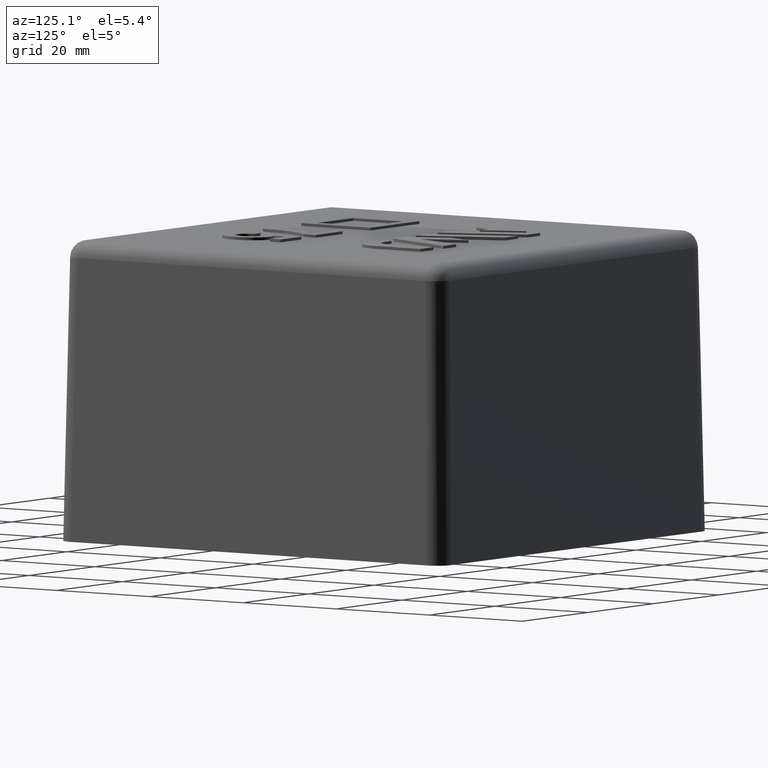
[diagram: clean part render]
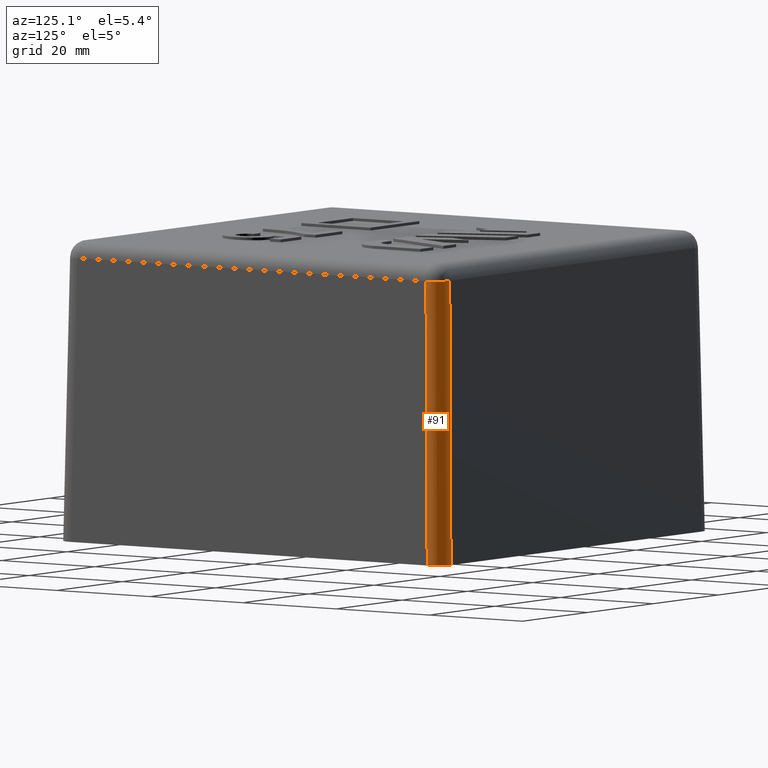
[diagram: same view with one face highlighted and labeled with its STEP entity id]
A machine part, auxiliary view. The second image highlights one B-rep face of the part: STEP entity #91.
In plain terms, the highlighted cylindrical surface (edge-blend (fillet) strip) has radius 3 mm, axis along (-0.0174, -0.0174, 0.9997).
Its self-contained STEP definition (entity closure, byte-faithful):
#91 = ADVANCED_FACE( '', ( #201 ), #202, .T. );
#201 = FACE_OUTER_BOUND( '', #384, .T. );
#202 = CYLINDRICAL_SURFACE( '', #385, 3.00000000000000 );
#384 = EDGE_LOOP( '', ( #703, #704, #705, #706 ) );
#385 = AXIS2_PLACEMENT_3D( '', #707, #708, #709 );
#703 = ORIENTED_EDGE( '', *, *, #1304, .F. );
#704 = ORIENTED_EDGE( '', *, *, #1310, .T. );
#705 = ORIENTED_EDGE( '', *, *, #1313, .F. );
#706 = ORIENTED_EDGE( '', *, *, #1314, .F. );
#707 = CARTESIAN_POINT( '', ( 38.2762190732399, 38.2762190732399, 1.33622777826016 ) );
#708 = DIRECTION( '', ( -0.0174497491606827, -0.0174497491606827, 0.999695459881888 ) );
#709 = DIRECTION( '', ( -0.999847695156391, 0.000000000000000, -0.0174524064372835 ) );
#1304 = EDGE_CURVE( '', #1580, #1582, #1583, .F. );
#1310 = EDGE_CURVE( '', #1580, #1588, #1590, .T. );
#1313 = EDGE_CURVE( '', #1594, #1588, #1595, .T. );
#1314 = EDGE_CURVE( '', #1582, #1594, #1596, .F. );
#1580 = VERTEX_POINT( '', #2065 );
#1582 = VERTEX_POINT( '', #2068 );
#1583 = LINE( '', #2069, #2070 );
#1588 = VERTEX_POINT( '', #2076 );
#1590 = CIRCLE( '', #2078, 3.00000000000000 );
#1594 = VERTEX_POINT( '', #2083 );
#1595 = LINE( '', #2084, #2085 );
#1596 = ELLIPSE( '', #2086, 3.00091389867315, 3.00000000000000 );
#2065 = CARTESIAN_POINT( '', ( 37.4267897694574, 40.4263328549266, 50.0523572193119 ) );
#2068 = CARTESIAN_POINT( '', ( 38.3004569145308, 41.3000000000000, 0.000000000000000 ) );
#2069 = CARTESIAN_POINT( '', ( 38.2762190732398, 41.2757621587090, 1.38858499757201 ) );
#2070 = VECTOR( '', #2455, 1000.00000000000 );
#2076 = CARTESIAN_POINT( '', ( 40.4263328549266, 37.4267897694574, 50.0523572193119 ) );
#2078 = AXIS2_PLACEMENT_3D( '', #2469, #2470, #2471 );
#2083 = CARTESIAN_POINT( '', ( 41.3000000000000, 38.3004569145308, 0.000000000000000 ) );
#2084 = CARTESIAN_POINT( '', ( 41.2757621587090, 38.2762190732399, 1.38858499757201 ) );
#2085 = VECTOR( '', #2476, 1000.00000000000 );
#2086 = AXIS2_PLACEMENT_3D( '', #2477, #2478, #2479 );
#2455 = DIRECTION( '', ( -0.0174497491606827, -0.0174497491606827, 0.999695459881887 ) );
#2469 = CARTESIAN_POINT( '', ( 37.4267897694574, 37.4267897694574, 50.0000000000000 ) );
#2470 = DIRECTION( '', ( 0.0174497491606827, 0.0174497491606827, -0.999695459881888 ) );
#2471 = DIRECTION( '', ( -0.999847695156391, 0.000000000000000, -0.0174524064372835 ) );
#2476 = DIRECTION( '', ( -0.0174497491606827, -0.0174497491606827, 0.999695459881887 ) );
#2477 = CARTESIAN_POINT( '', ( 38.2995430158683, 38.2995430158683, 0.000000000000000 ) );
#2478 = DIRECTION( '', ( 0.000000000000000, 0.000000000000000, 1.00000000000000 ) );
#2479 = DIRECTION( '', ( 0.707106781186548, 0.707106781186548, 0.000000000000000 ) );